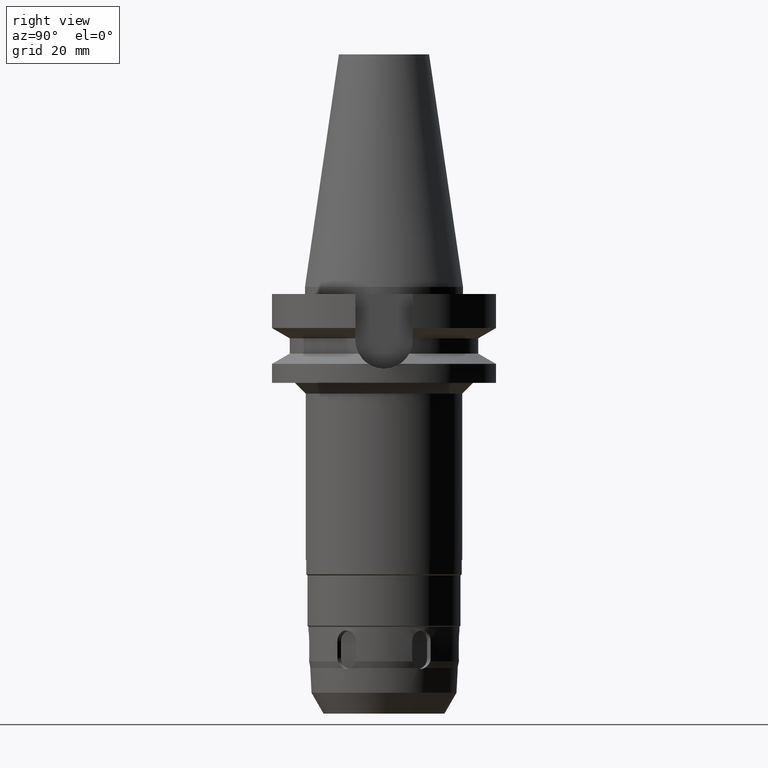
[diagram: clean part render]
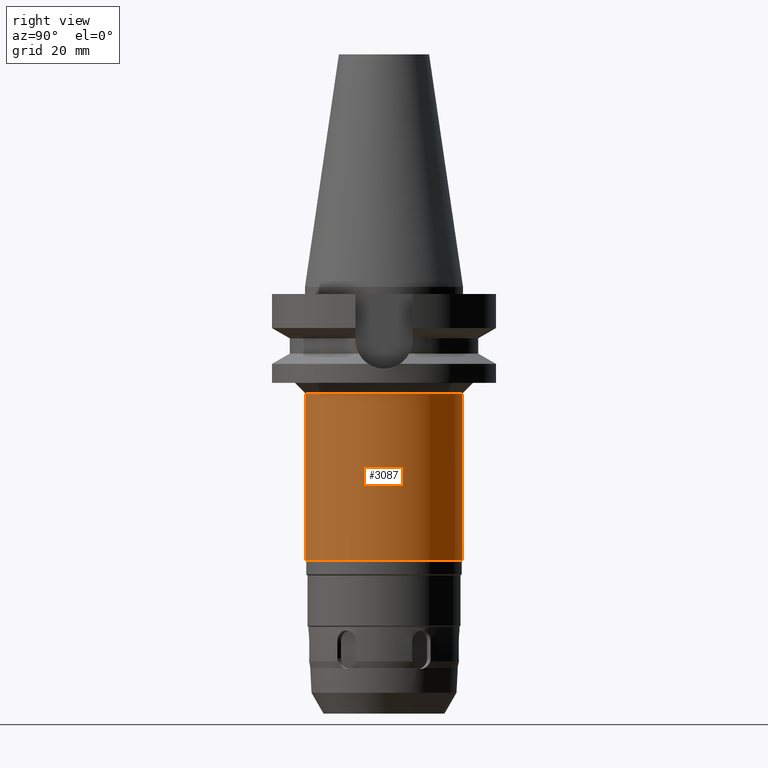
[diagram: same view with one face highlighted and labeled with its STEP entity id]
A machine part, right view. The second image highlights one B-rep face of the part: STEP entity #3087.
In plain terms, the highlighted cylindrical surface (partial cylindrical patch) has radius 22 mm, axis along (0, 0, -1).
Its self-contained STEP definition (entity closure, byte-faithful):
#681=CARTESIAN_POINT('',(0.E0,0.E0,-3.E1));
#682=DIRECTION('',(0.E0,0.E0,-1.E0));
#683=DIRECTION('',(0.E0,1.E0,0.E0));
#684=AXIS2_PLACEMENT_3D('',#681,#682,#683);
#689=DIRECTION('',(0.E0,0.E0,-1.E0));
#690=VECTOR('',#689,4.68E1);
#691=CARTESIAN_POINT('',(0.E0,2.2E1,-3.E1));
#692=LINE('',#691,#690);
#696=DIRECTION('',(0.E0,0.E0,-1.E0));
#697=VECTOR('',#696,4.68E1);
#698=CARTESIAN_POINT('',(0.E0,-2.2E1,-3.E1));
#699=LINE('',#698,#697);
#703=CARTESIAN_POINT('',(0.E0,2.139090564071E-14,-7.68E1));
#704=DIRECTION('',(0.E0,0.E0,1.E0));
#705=DIRECTION('',(0.E0,-1.E0,0.E0));
#706=AXIS2_PLACEMENT_3D('',#703,#704,#705);
#2469=CARTESIAN_POINT('',(0.E0,-2.2E1,-7.68E1));
#2470=CARTESIAN_POINT('',(0.E0,2.2E1,-7.68E1));
#2471=VERTEX_POINT('',#2469);
#2472=VERTEX_POINT('',#2470);
#2473=CARTESIAN_POINT('',(0.E0,2.2E1,-3.E1));
#2474=VERTEX_POINT('',#2473);
#2475=CARTESIAN_POINT('',(0.E0,-2.2E1,-3.E1));
#2476=VERTEX_POINT('',#2475);
#3073=CARTESIAN_POINT('',(0.E0,2.139090564071E-14,7.467E1));
#3074=DIRECTION('',(0.E0,0.E0,-1.E0));
#3075=DIRECTION('',(0.E0,-1.E0,0.E0));
#3076=AXIS2_PLACEMENT_3D('',#3073,#3074,#3075);
#3077=CYLINDRICAL_SURFACE('',#3076,2.2E1);
#3079=ORIENTED_EDGE('',*,*,#3078,.T.);
#3081=ORIENTED_EDGE('',*,*,#3080,.F.);
#3083=ORIENTED_EDGE('',*,*,#3082,.F.);
#3084=ORIENTED_EDGE('',*,*,#3066,.F.);
#3085=EDGE_LOOP('',(#3079,#3081,#3083,#3084));
#3086=FACE_OUTER_BOUND('',#3085,.F.);
#685=CIRCLE('',#684,2.2E1);
#707=CIRCLE('',#706,2.2E1);
#3066=EDGE_CURVE('',#2474,#2476,#685,.T.);
#3078=EDGE_CURVE('',#2474,#2472,#692,.T.);
#3080=EDGE_CURVE('',#2471,#2472,#707,.T.);
#3082=EDGE_CURVE('',#2476,#2471,#699,.T.);
#3087=ADVANCED_FACE('',(#3086),#3077,.T.);